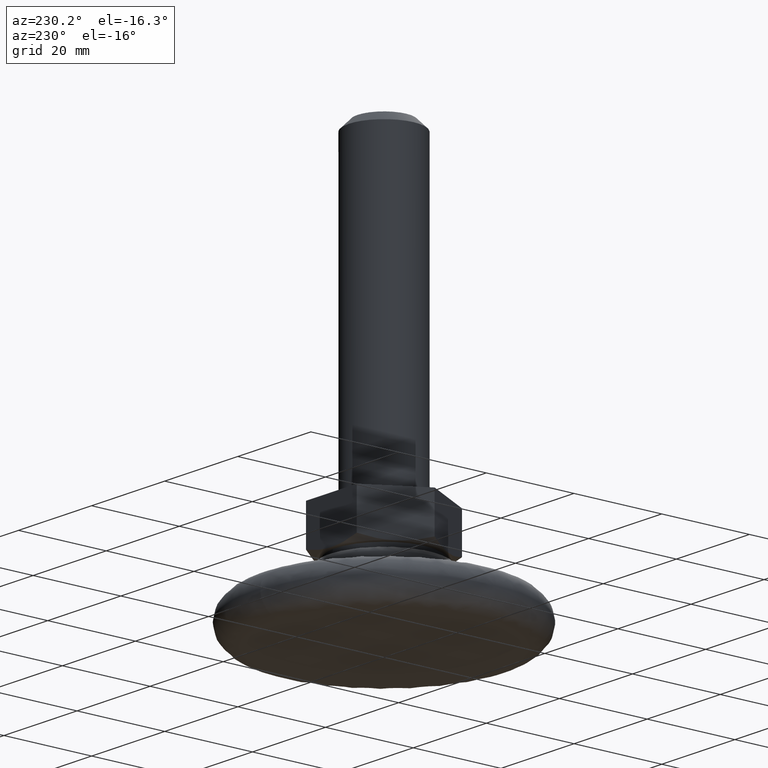
[diagram: clean part render]
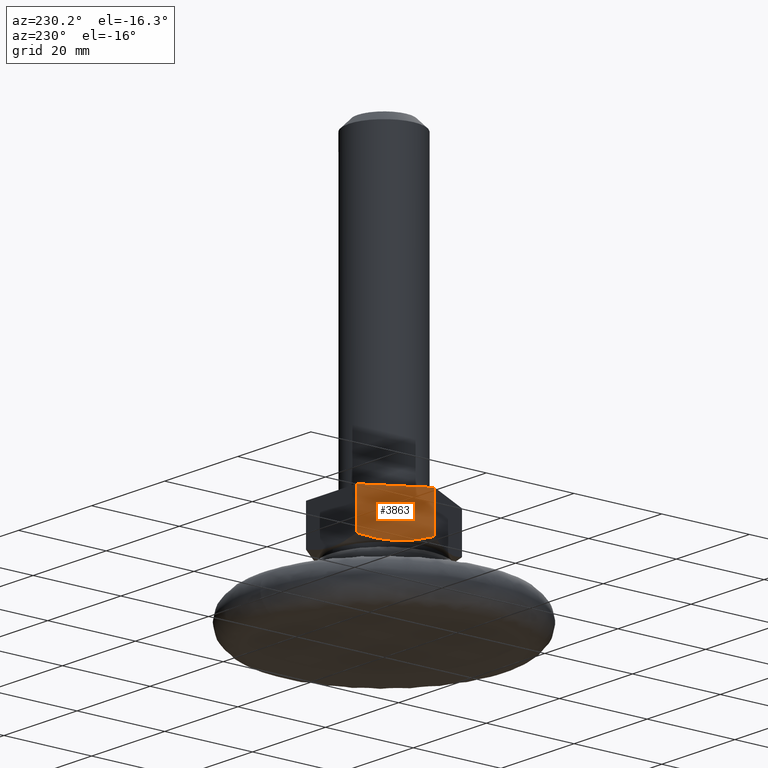
[diagram: same view with one face highlighted and labeled with its STEP entity id]
A machine part, auxiliary view. The second image highlights one B-rep face of the part: STEP entity #3863.
In plain terms, the highlighted face is a freeform B-spline surface patch.
Its self-contained STEP definition (entity closure, byte-faithful):
#3420=CARTESIAN_POINT('',(-6.928203000000000,12.0,17.071796613999251));
#3421=VERTEX_POINT('',#3420);
#3435=CARTESIAN_POINT('',(-10.392304672706659,5.999999700863340,16.0));
#3436=VERTEX_POINT('',#3435);
#3450=CARTESIAN_POINT('',(-10.392304672706659,5.999999700863340,16.0));
#3451=CARTESIAN_POINT('',(-10.247233684036930,6.251270032295063,16.000001142513931));
#3452=CARTESIAN_POINT('',(-10.101459162853660,6.503758917825590,16.006120892471522));
#3453=CARTESIAN_POINT('',(-9.809005327304890,7.010303836700681,16.030593895471970));
#3454=CARTESIAN_POINT('',(-9.662186497132989,7.264601518518448,16.049103316365031));
#3455=CARTESIAN_POINT('',(-9.223199191041456,8.024949861818786,16.122370789116520));
#3456=CARTESIAN_POINT('',(-8.932503334405967,8.528449871796243,16.194909524194760));
#3457=CARTESIAN_POINT('',(-8.065591204401279,10.029985776569280,16.475014967759869));
#3458=CARTESIAN_POINT('',(-7.494530204842354,11.019092474901750,16.744827425381619));
#3459=CARTESIAN_POINT('',(-6.928203000000000,12.0,17.071796613999251));
#3460=B_SPLINE_CURVE_WITH_KNOTS('',3,(#3450,#3451,#3452,#3453,#3454,#3455,#3456,#3457,#3458,#3459),.UNSPECIFIED.,.F.,.U.,(4,2,2,2,4),(0.500936493269501,0.562499999999999,0.624999999999999,0.749999999999999,1.0),.UNSPECIFIED.);
#3461=EDGE_CURVE('',#3436,#3421,#3460,.T.);
#3480=CARTESIAN_POINT('',(-13.856406000000019,-1.336118E-015,17.071796414574798));
#3481=VERTEX_POINT('',#3480);
#3482=CARTESIAN_POINT('',(-13.856406000000019,-1.336118E-015,17.071796414574798));
#3483=CARTESIAN_POINT('',(-13.290783902918781,0.979686242590523,16.745234344564849));
#3484=CARTESIAN_POINT('',(-12.721038017792869,1.966515095831536,16.476088076766921));
#3485=CARTESIAN_POINT('',(-11.857507493487921,3.462193887526780,16.196446878104570));
#3486=CARTESIAN_POINT('',(-11.568175140810530,3.963332239294002,16.123962437013571));
#3487=CARTESIAN_POINT('',(-10.986140866521840,4.971445207615558,16.025908309264061));
#3488=CARTESIAN_POINT('',(-10.693436033250221,5.478424867313668,16.000379161864910));
#3489=CARTESIAN_POINT('',(-10.396718098792091,5.992355422393762,16.000001143876339));
#3490=CARTESIAN_POINT('',(-10.394511467147170,5.996177420643402,15.999999748966980));
#3491=CARTESIAN_POINT('',(-10.392304672706659,5.999999700863340,16.0));
#3492=B_SPLINE_CURVE_WITH_KNOTS('',3,(#3482,#3483,#3484,#3485,#3486,#3487,#3488,#3489,#3490,#3491),.UNSPECIFIED.,.F.,.U.,(4,2,2,2,4),(0.0,0.249999999999999,0.374999999999999,0.499999999999999,0.500936493269501),.UNSPECIFIED.);
#3493=EDGE_CURVE('',#3481,#3436,#3492,.T.);
#3714=CARTESIAN_POINT('',(-6.928203000000000,12.0,26.0));
#3715=VERTEX_POINT('',#3714);
#3721=CARTESIAN_POINT('',(-13.856406000000019,0.0,26.0));
#3722=VERTEX_POINT('',#3721);
#3723=CARTESIAN_POINT('',(-6.928203000000000,12.0,26.0));
#3724=CARTESIAN_POINT('',(-13.856406000000019,0.0,26.0));
#3725=QUASI_UNIFORM_CURVE('',1,(#3723,#3724),.UNSPECIFIED.,.F.,.U.);
#3726=EDGE_CURVE('',#3715,#3722,#3725,.T.);
#3838=CARTESIAN_POINT('',(-13.856406000000019,0.0,26.0));
#3839=CARTESIAN_POINT('',(-13.856406000000019,-1.336118E-015,17.071796414574798));
#3840=QUASI_UNIFORM_CURVE('',1,(#3838,#3839),.UNSPECIFIED.,.F.,.U.);
#3841=EDGE_CURVE('',#3722,#3481,#3840,.T.);
#3847=CARTESIAN_POINT('',(-14.202469791458800,-0.599400089389106,15.500500019381940));
#3848=CARTESIAN_POINT('',(-6.582139084655266,12.599400303965810,15.500500019381940));
#3849=CARTESIAN_POINT('',(-14.202469791458800,-0.599400089389106,26.499500248838970));
#3850=CARTESIAN_POINT('',(-6.582139084655266,12.599400303965810,26.499500248838970));
#3851=B_SPLINE_SURFACE_WITH_KNOTS('',1,1,((#3847,#3849),(#3848,#3850)),.UNSPECIFIED.,.F.,.F.,.U.,(2,2),(2,2),(0.0,15.240661793527170),(0.0,10.999000229457030),.UNSPECIFIED.);
#3852=ORIENTED_EDGE('',*,*,#3493,.F.);
#3853=ORIENTED_EDGE('',*,*,#3841,.F.);
#3854=ORIENTED_EDGE('',*,*,#3726,.F.);
#3855=CARTESIAN_POINT('',(-6.928203000000000,12.0,26.0));
#3856=CARTESIAN_POINT('',(-6.928203000000000,12.0,17.071796613999251));
#3857=QUASI_UNIFORM_CURVE('',1,(#3855,#3856),.UNSPECIFIED.,.F.,.U.);
#3858=EDGE_CURVE('',#3715,#3421,#3857,.T.);
#3859=ORIENTED_EDGE('',*,*,#3858,.T.);
#3860=ORIENTED_EDGE('',*,*,#3461,.F.);
#3861=EDGE_LOOP('',(#3852,#3853,#3854,#3859,#3860));
#3862=FACE_OUTER_BOUND('',#3861,.T.);
#3863=ADVANCED_FACE('',(#3862),#3851,.F.);